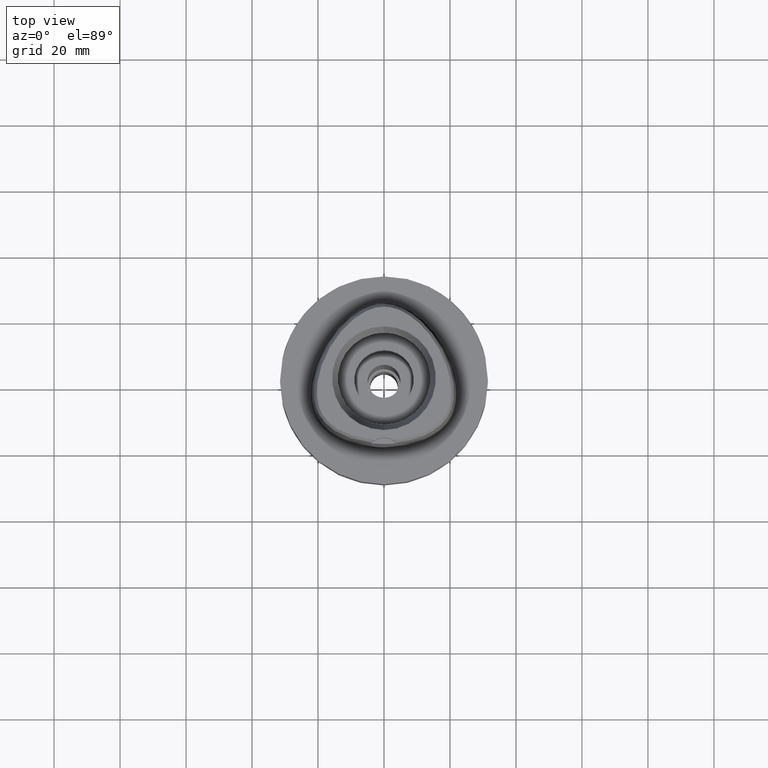
[diagram: clean part render]
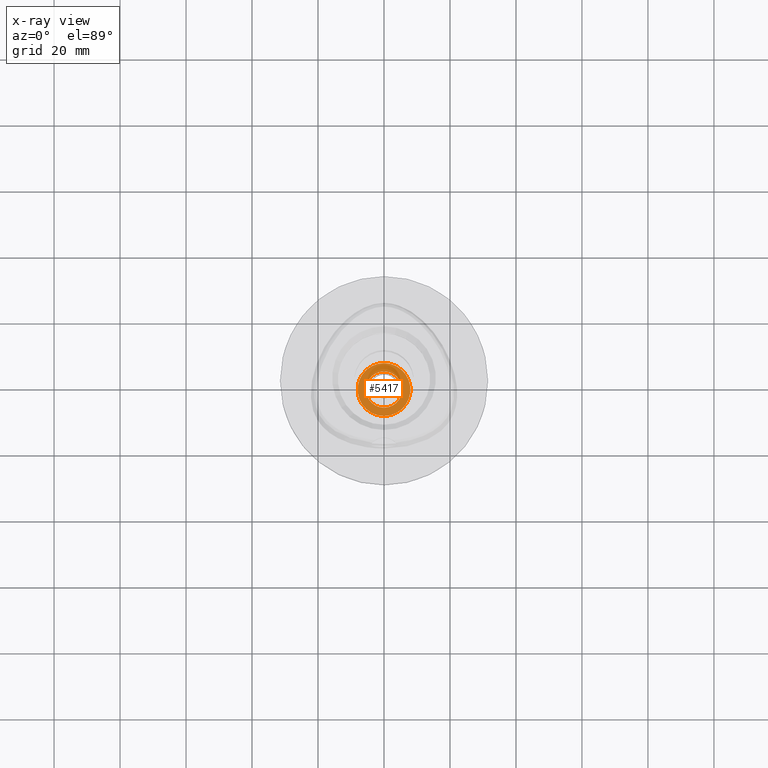
[diagram: x-ray — body ghosted, one internal face saturated and labeled with its STEP entity id]
A machine part, top view, then the same camera in x-ray: the body is ghosted and one INTERNAL B-rep face — a face not visible from any outside direction — is saturated and labeled: STEP entity #5417.
In plain terms, the highlighted planar face has unit normal (0, 0, -1).
Its self-contained STEP definition (entity closure, byte-faithful):
#420 = CARTESIAN_POINT ( 'NONE',  ( 0.0000000000000000000, 0.0000000000000000000, -7.799999999999999822 ) ) ;
#525 = DIRECTION ( 'NONE',  ( 0.0000000000000000000, -1.000000000000000000, 0.0000000000000000000 ) ) ;
#765 = FACE_BOUND ( 'NONE', #3527, .T. ) ;
#792 = EDGE_CURVE ( 'NONE', #3979, #2652, #1839, .T. ) ;
#838 = CARTESIAN_POINT ( 'NONE',  ( 0.0000000000000000000, 0.0000000000000000000, -7.799999999999999822 ) ) ;
#871 = AXIS2_PLACEMENT_3D ( 'NONE', #1343, #4359, #4394 ) ;
#919 = DIRECTION ( 'NONE',  ( 0.0000000000000000000, 0.0000000000000000000, -1.000000000000000000 ) ) ;
#1223 = VERTEX_POINT ( 'NONE', #1333 ) ;
#1333 = CARTESIAN_POINT ( 'NONE',  ( 0.0000000000000000000, -5.500000000000000000, -7.799999999999999822 ) ) ;
#1343 = CARTESIAN_POINT ( 'NONE',  ( 0.0000000000000000000, 0.0000000000000000000, -7.799999999999999822 ) ) ;
#1428 = DIRECTION ( 'NONE',  ( 0.0000000000000000000, 0.0000000000000000000, 1.000000000000000000 ) ) ;
#1578 = AXIS2_PLACEMENT_3D ( 'NONE', #5254, #5566, #525 ) ;
#1595 = CARTESIAN_POINT ( 'NONE',  ( 0.0000000000000000000, 8.000000000000000000, -7.799999999999999822 ) ) ;
#1839 = CIRCLE ( 'NONE', #4287, 8.000000000000000000 ) ;
#1903 = EDGE_LOOP ( 'NONE', ( #2177, #3615 ) ) ;
#1928 = EDGE_CURVE ( 'NONE', #2652, #3979, #3385, .T. ) ;
#1967 = EDGE_CURVE ( 'NONE', #1223, #2138, #4473, .T. ) ;
#2130 = DIRECTION ( 'NONE',  ( 0.0000000000000000000, 0.0000000000000000000, -1.000000000000000000 ) ) ;
#2138 = VERTEX_POINT ( 'NONE', #2348 ) ;
#2177 = ORIENTED_EDGE ( 'NONE', *, *, #1928, .F. ) ;
#2348 = CARTESIAN_POINT ( 'NONE',  ( 0.0000000000000000000, 5.500000000000000000, -7.799999999999999822 ) ) ;
#2477 = PLANE ( 'NONE',  #5078 ) ;
#2633 = DIRECTION ( 'NONE',  ( 0.0000000000000000000, -1.000000000000000000, 0.0000000000000000000 ) ) ;
#2652 = VERTEX_POINT ( 'NONE', #1595 ) ;
#2694 = CARTESIAN_POINT ( 'NONE',  ( 0.0000000000000000000, 0.0000000000000000000, -7.799999999999999822 ) ) ;
#2945 = EDGE_CURVE ( 'NONE', #2138, #1223, #4395, .T. ) ;
#3091 = DIRECTION ( 'NONE',  ( 0.0000000000000000000, 1.000000000000000000, 0.0000000000000000000 ) ) ;
#3220 = ORIENTED_EDGE ( 'NONE', *, *, #1967, .F. ) ;
#3385 = CIRCLE ( 'NONE', #871, 8.000000000000000000 ) ;
#3527 = EDGE_LOOP ( 'NONE', ( #4790, #3220 ) ) ;
#3615 = ORIENTED_EDGE ( 'NONE', *, *, #792, .F. ) ;
#3845 = AXIS2_PLACEMENT_3D ( 'NONE', #2694, #1428, #3091 ) ;
#3971 = CARTESIAN_POINT ( 'NONE',  ( 0.0000000000000000000, -8.000000000000000000, -7.799999999999999822 ) ) ;
#3979 = VERTEX_POINT ( 'NONE', #3971 ) ;
#4287 = AXIS2_PLACEMENT_3D ( 'NONE', #838, #919, #2633 ) ;
#4359 = DIRECTION ( 'NONE',  ( 0.0000000000000000000, 0.0000000000000000000, -1.000000000000000000 ) ) ;
#4394 = DIRECTION ( 'NONE',  ( 0.0000000000000000000, 1.000000000000000000, 0.0000000000000000000 ) ) ;
#4395 = CIRCLE ( 'NONE', #3845, 5.500000000000000000 ) ;
#4473 = CIRCLE ( 'NONE', #1578, 5.500000000000000000 ) ;
#4622 = FACE_OUTER_BOUND ( 'NONE', #1903, .T. ) ;
#4790 = ORIENTED_EDGE ( 'NONE', *, *, #2945, .F. ) ;
#5078 = AXIS2_PLACEMENT_3D ( 'NONE', #420, #2130, #5125 ) ;
#5125 = DIRECTION ( 'NONE',  ( 0.0000000000000000000, -1.000000000000000000, 0.0000000000000000000 ) ) ;
#5254 = CARTESIAN_POINT ( 'NONE',  ( 0.0000000000000000000, 0.0000000000000000000, -7.799999999999999822 ) ) ;
#5417 = ADVANCED_FACE ( 'NONE', ( #4622, #765 ), #2477, .F. ) ;
#5566 = DIRECTION ( 'NONE',  ( 0.0000000000000000000, 0.0000000000000000000, 1.000000000000000000 ) ) ;